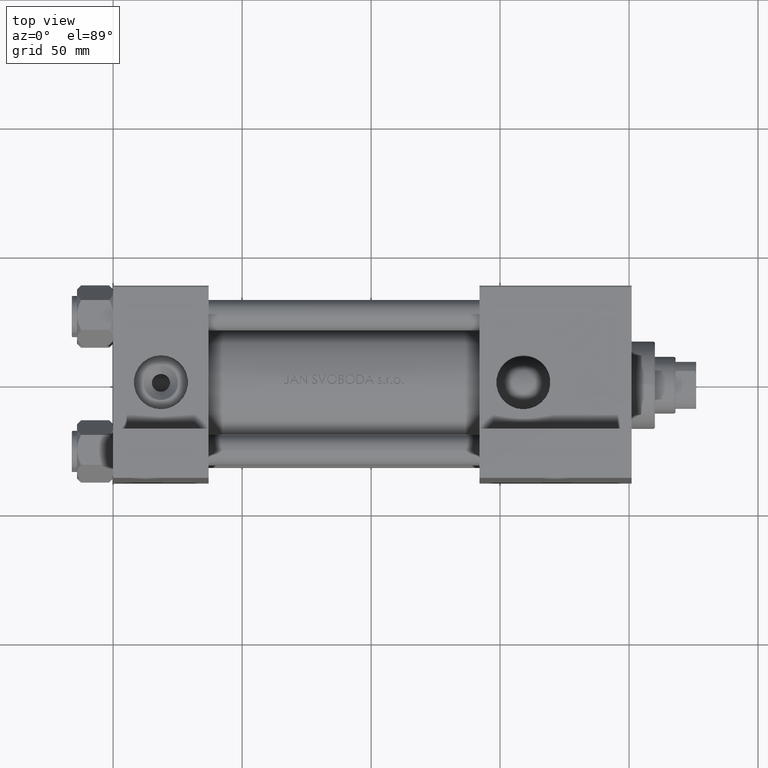
[diagram: clean part render]
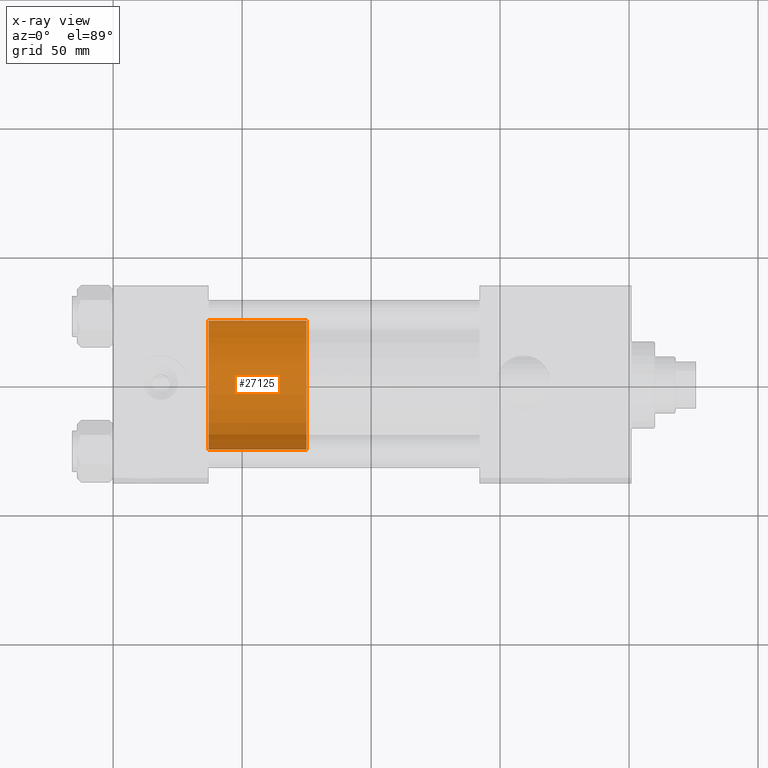
[diagram: x-ray — body ghosted, one internal face saturated and labeled with its STEP entity id]
A machine part, top view, then the same camera in x-ray: the body is ghosted and one INTERNAL B-rep face — a face not visible from any outside direction — is saturated and labeled: STEP entity #27125.
In plain terms, the highlighted cylindrical surface (partial cylindrical patch) has radius 25 mm, axis along (-1, 0, 0).
Its self-contained STEP definition (entity closure, byte-faithful):
#2256 = VERTEX_POINT ( 'NONE', #48084 ) ;
#2867 = DIRECTION ( 'NONE',  ( 0.000000000000000000, 0.000000000000000000, 1.000000000000000000 ) ) ;
#3117 = CARTESIAN_POINT ( 'NONE',  ( 0.000000000000000000, 0.000000000000000000, 0.000000000000000000 ) ) ;
#5614 = EDGE_CURVE ( 'NONE', #37993, #2256, #23952, .T. ) ;
#7813 = DIRECTION ( 'NONE',  ( 0.000000000000000000, 0.000000000000000000, 1.000000000000000000 ) ) ;
#8105 = AXIS2_PLACEMENT_3D ( 'NONE', #44662, #41179, #22471 ) ;
#9792 = EDGE_CURVE ( 'NONE', #37993, #38334, #23536, .T. ) ;
#12529 = ORIENTED_EDGE ( 'NONE', *, *, #14468, .F. ) ;
#14468 = EDGE_CURVE ( 'NONE', #38334, #15777, #19991, .T. ) ;
#15777 = VERTEX_POINT ( 'NONE', #34190 ) ;
#16228 = DIRECTION ( 'NONE',  ( -0.000000000000000000, -0.000000000000000000, -1.000000000000000000 ) ) ;
#18394 = ORIENTED_EDGE ( 'NONE', *, *, #9792, .F. ) ;
#18494 = CYLINDRICAL_SURFACE ( 'NONE', #8105, 25.00000000000000000 ) ;
#18789 = AXIS2_PLACEMENT_3D ( 'NONE', #26966, #7813, #46167 ) ;
#19508 = CARTESIAN_POINT ( 'NONE',  ( -25.00000000000000000, 0.000000000000000000, 38.00000000000000000 ) ) ;
#19991 = LINE ( 'NONE', #19508, #28461 ) ;
#21388 = ORIENTED_EDGE ( 'NONE', *, *, #34542, .T. ) ;
#22471 = DIRECTION ( 'NONE',  ( -1.000000000000000000, 0.000000000000000000, 0.000000000000000000 ) ) ;
#23490 = DIRECTION ( 'NONE',  ( -0.000000000000000000, -0.000000000000000000, -1.000000000000000000 ) ) ;
#23536 = CIRCLE ( 'NONE', #18789, 25.00000000000000000 ) ;
#23952 = LINE ( 'NONE', #39158, #25812 ) ;
#25042 = EDGE_LOOP ( 'NONE', ( #18394, #27644, #21388, #12529 ) ) ;
#25812 = VECTOR ( 'NONE', #16228, 1000.000000000000000 ) ;
#26424 = CARTESIAN_POINT ( 'NONE',  ( -25.00000000000000000, 0.000000000000000000, 38.00000000000000000 ) ) ;
#26966 = CARTESIAN_POINT ( 'NONE',  ( 0.000000000000000000, 0.000000000000000000, 38.00000000000000000 ) ) ;
#27125 = ADVANCED_FACE ( 'NONE', ( #29189 ), #18494, .T. ) ;
#27644 = ORIENTED_EDGE ( 'NONE', *, *, #5614, .T. ) ;
#28461 = VECTOR ( 'NONE', #23490, 1000.000000000000000 ) ;
#29189 = FACE_OUTER_BOUND ( 'NONE', #25042, .T. ) ;
#34190 = CARTESIAN_POINT ( 'NONE',  ( -25.00000000000000000, 0.000000000000000000, 0.000000000000000000 ) ) ;
#34230 = CARTESIAN_POINT ( 'NONE',  ( 25.00000000000000000, 3.061616997868383043E-15, 38.00000000000000000 ) ) ;
#34542 = EDGE_CURVE ( 'NONE', #2256, #15777, #44049, .T. ) ;
#37993 = VERTEX_POINT ( 'NONE', #34230 ) ;
#38334 = VERTEX_POINT ( 'NONE', #26424 ) ;
#39158 = CARTESIAN_POINT ( 'NONE',  ( 25.00000000000000000, 3.061616997868383043E-15, 38.00000000000000000 ) ) ;
#41179 = DIRECTION ( 'NONE',  ( -0.000000000000000000, -0.000000000000000000, -1.000000000000000000 ) ) ;
#41229 = DIRECTION ( 'NONE',  ( 1.000000000000000000, 0.000000000000000000, 0.000000000000000000 ) ) ;
#43274 = AXIS2_PLACEMENT_3D ( 'NONE', #3117, #2867, #41229 ) ;
#44049 = CIRCLE ( 'NONE', #43274, 25.00000000000000000 ) ;
#44662 = CARTESIAN_POINT ( 'NONE',  ( 0.000000000000000000, 0.000000000000000000, 38.00000000000000000 ) ) ;
#46167 = DIRECTION ( 'NONE',  ( 1.000000000000000000, 0.000000000000000000, 0.000000000000000000 ) ) ;
#48084 = CARTESIAN_POINT ( 'NONE',  ( 25.00000000000000000, 3.061616997868383043E-15, 0.000000000000000000 ) ) ;